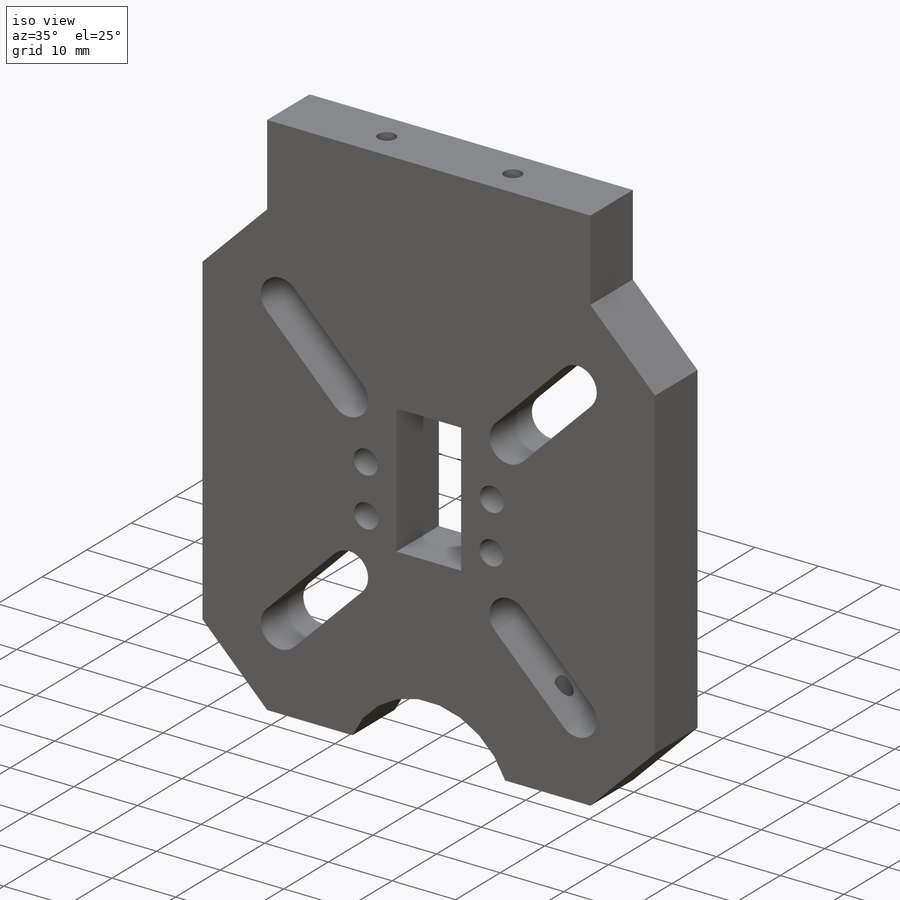
[diagram: iso view]
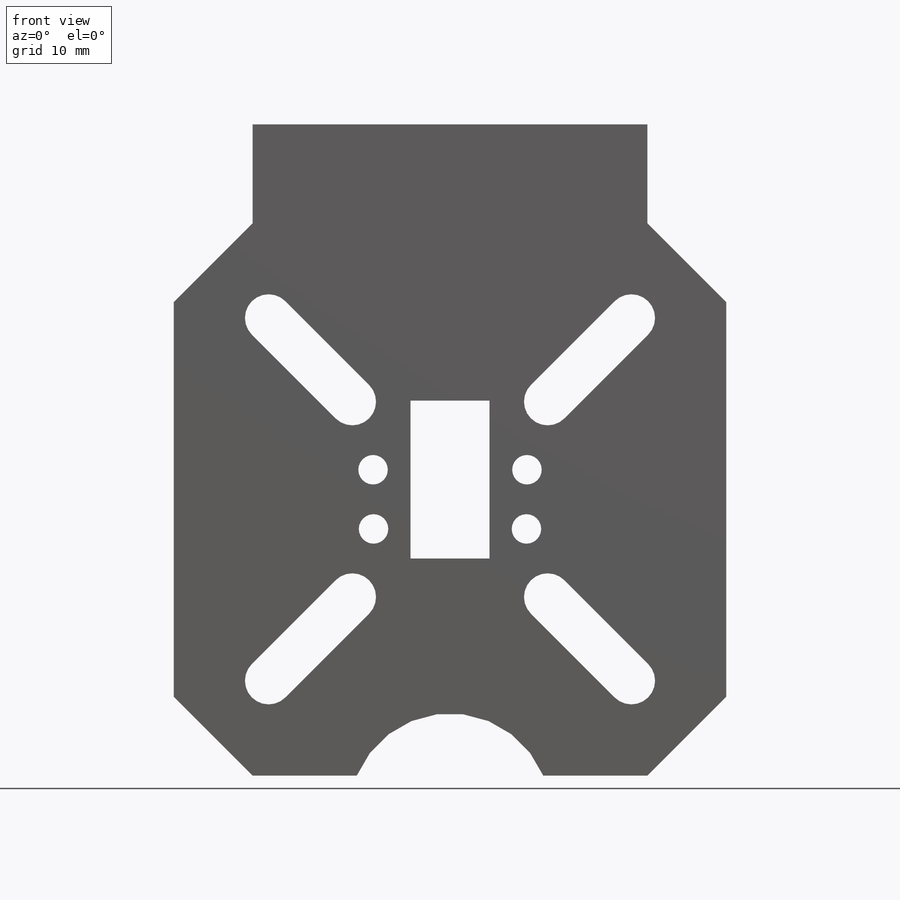
[diagram: front view]
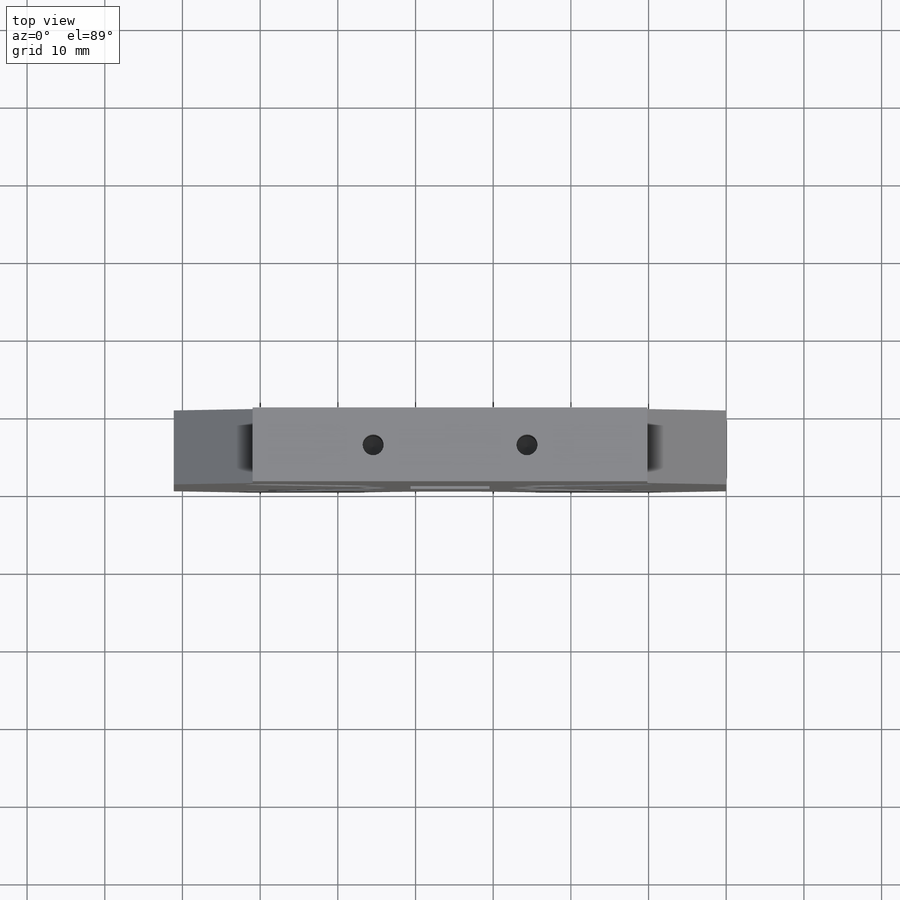
[diagram: top view]
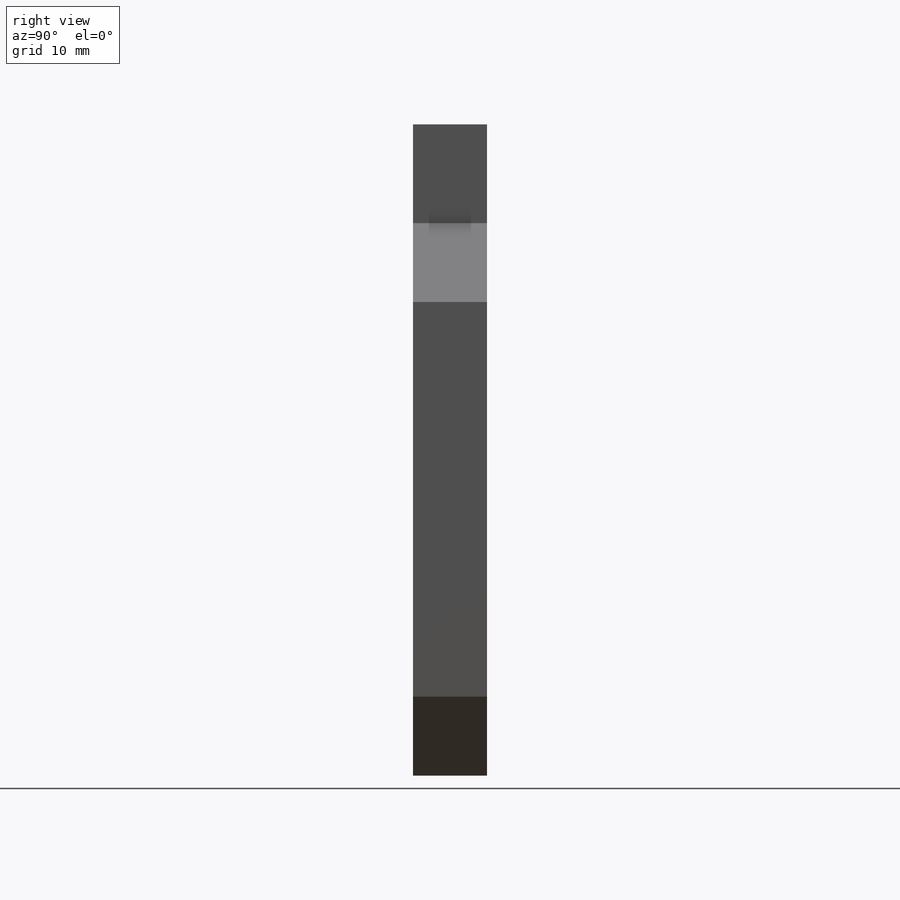
[diagram: right view]
SOLIDWORKS PART (.sldprt)
format: sldprt  version: not decoded by parser v0  size: 429,056 bytes
history: native  units: mm
features: sketch x12, plane x5, mirror x4, cut_extrude x3, chamfer x3, hole x3, extrude x2, thread x2, material x1 + 1 further entry (+7 scaffold rows collapsed)
feature tree (43):
  scaffold x7  (default folders/planes/origin — collapsed)
  material  "Material <not specified>"
  plane  "정면"
  plane  "윗면"
  plane  "우측면"
  "원점"
  sketch  "Sketch1"  dims[D1=71.12mm D2=71.12mm]
  extrude  "Extrude1"  Depth=9.525mm
  sketch  "Sketch3"  dims[c1.D2=6.096mm c1.D3=6.096mm c1.D1=12.0mm c1.D4=15.24mm c1.D5=15.0mm c2.D1=17.78mm]
  cut_extrude  "Cut-Extrude1"  [1 undecoded]
  plane  "Plane1"  Offset=35.56mm
  plane  "Plane2"  Offset=35.56mm
  mirror  "Mirror1"
  mirror  "Mirror2"
  mirror  "Mirror3"
  sketch  "Sketch5"  dims[c1.D1=15.0mm c2.D1=10.0mm c2.D2=~7.991781mm c2.D3=10.0mm c3.D1=12.7mm c3.D2=5.08mm c3.D3=10.16mm c3.D4=20.32mm]
  cut_extrude  "Cut-Extrude4"  [1 undecoded]
  sketch  "Sketch20"  dims[c1.D1=26.0mm c1.D2=13.0mm c2.D1=5.0mm]
  cut_extrude  "Cut-Extrude5"  [1 undecoded]
  chamfer  "Chamfer1"  Distance=10.16mm Angle=45deg
  chamfer  "Chamfer2"  Distance=10.16mm Angle=45deg
  hole  "#6 Clearance Hole1"  Diameter=3.7973mm Depth=9.525mm
  sketch  "3DSketch9"  dims[D1=4.7625mm D2=4.826mm D3=7.62mm D4=3.81mm]
  sketch  "Sketch25"  dims[hole-wizard template sketch: 60 standard entries collapsed; hole parameters kept: c18.Thru Hole Depth=9.525mm]
  mirror  "Mirror11"
  chamfer  "Chamfer3"  Distance=10.16mm Angle=45deg
  sketch  "Sketch26"  dims[D1=50.8mm]
  extrude  "Extrude2"  Depth=12.7mm
  hole  "#6-32 Tapped Hole4"  Diameter=2.7051mm Depth=13.97mm
  sketch  "3DSketch11"  dims[c1.D1=35.56mm c1.D2=7.62mm c1.D3=~4.118675mm c1.D4=4.7625mm c2.D3=4.7625mm c2.D4=4.7625mm]
  sketch  "Sketch28"  dims[hole-wizard template sketch: 29 standard entries collapsed; hole parameters kept: c8.Tap Drill Depth=13.97mm c8.Thread Major Dia.=3.5052mm c8.Thread Depth=9.906mm c8.D5=~14.816244mm c8.Drill Angle=118.0deg]
  sketch  "Sketch29"  dims[D1=9.906mm D2=19.812mm D3=4.826mm D4=4.699mm]
  hole  "#6-32 Tapped Hole5"  Diameter=2.7051mm Depth=13.97mm
  sketch  "3DSketch12"
  sketch  "Sketch30"  dims[hole-wizard template sketch: 47 standard entries collapsed; hole parameters kept: c15.Tap Drill Depth=13.97mm c15.D3=~14.816244mm c15.Drill Angle=118.0deg]
  thread  "Hole Thread1"  Diameter=9.906mm  [1 undecoded]
  thread  "Hole Thread2"  Diameter=9.906mm  [1 undecoded]
decode coverage: 21 of 29 modeling features carry decoded parameters; 1 rows unclassified (native names shown)
note: ~ marks probable driven/reference dimensions
note: 5 parameter values undecoded
summary: no parameter record found for 3 features
note: suppression state not decoded; provenance and decode notes live in map.json
